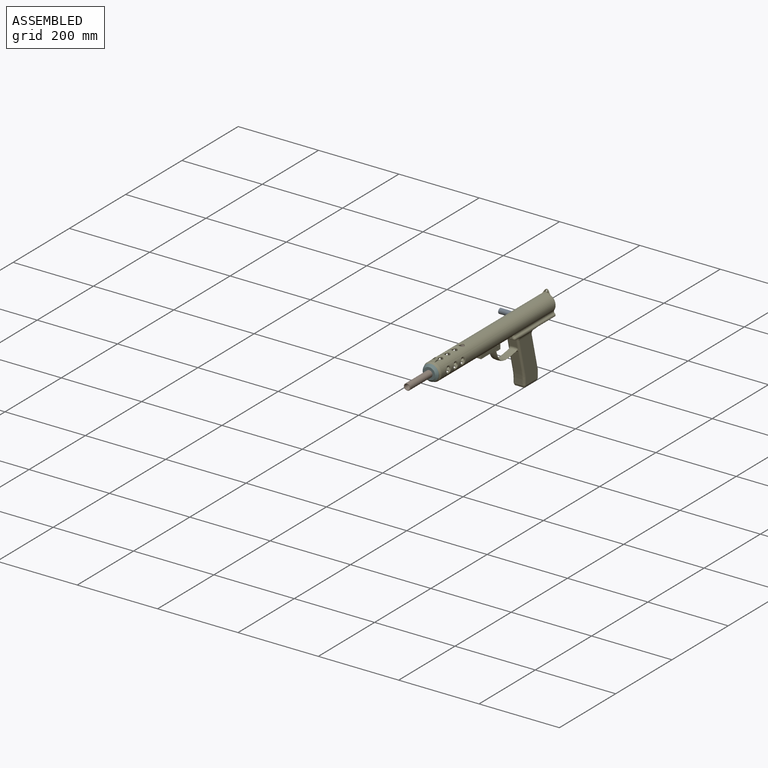
[diagram: assembled view]
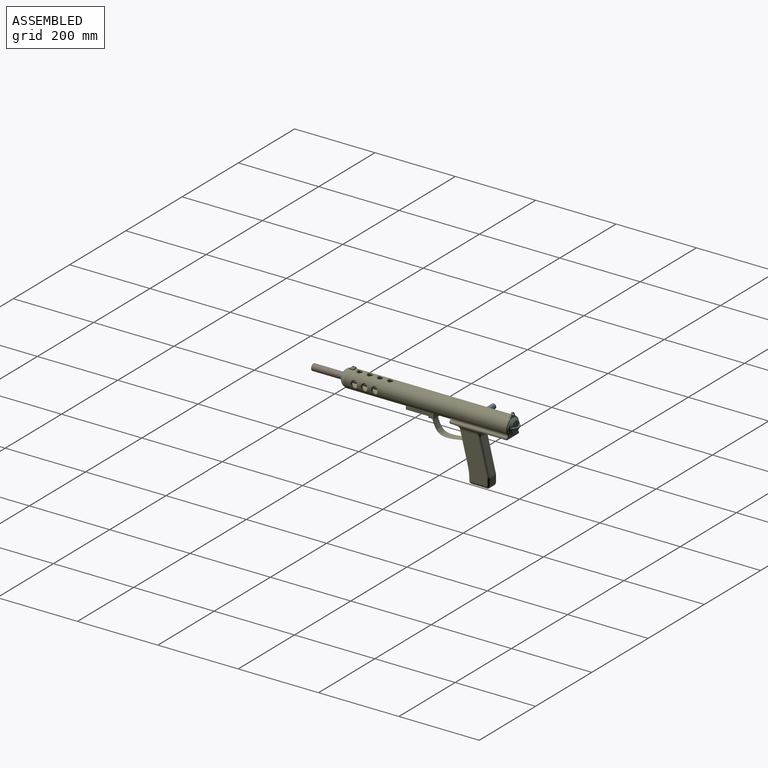
[diagram: assembled view, second angle]
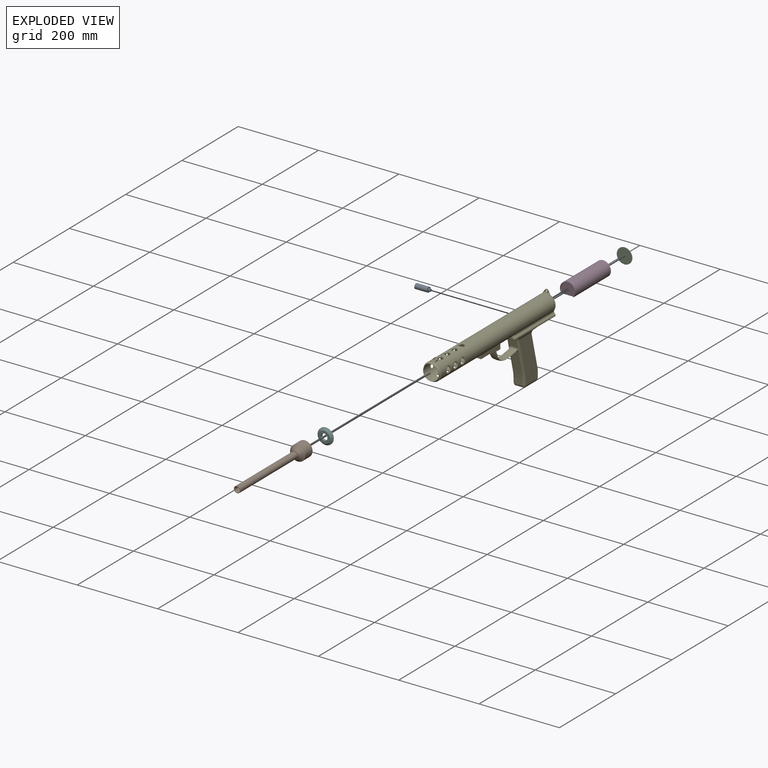
[diagram: exploded view]
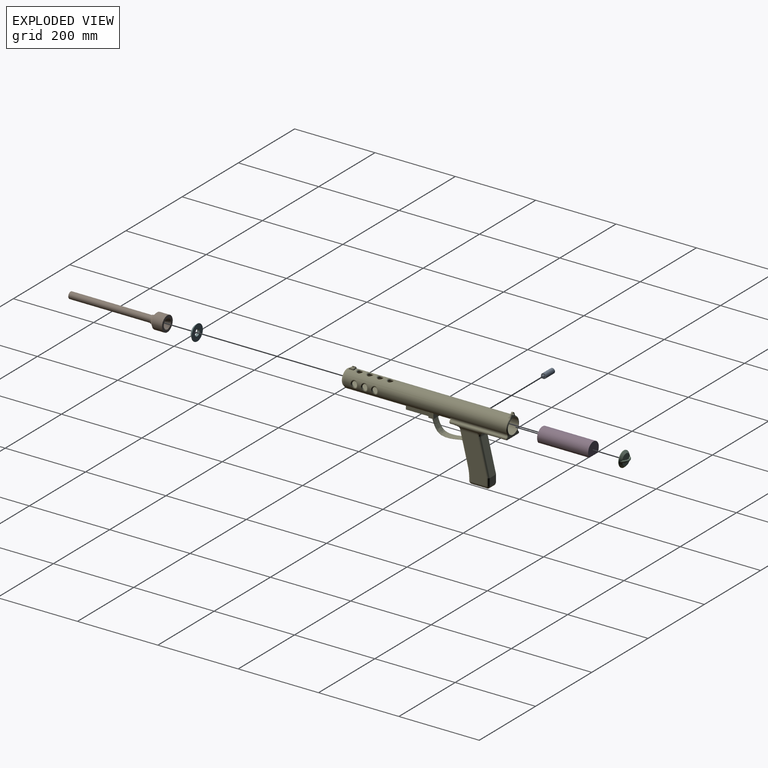
[diagram: exploded view, second angle]
ASSEMBLY  parts=6 mates=6
PART A: 7 faces, bbox 36.8x12.7x12.7 mm
  f0: cylinder r=6.35mm len=31.75mm, axis (-1,0,0), area 1266.8mm2, adj f1,f2
  f1: plane 12.7x12.7mm, normal (1,0,0), area 70.6mm2, adj f0,f5
  f2: plane 12.7x12.7mm, normal (-1,0,0), area 95mm2, adj f0,f3
  f3: cylinder r=3.17mm len=6.35mm, axis (1,0,0), area 101.3mm2, adj f2,f4
  f4: plane 6.35x6.35mm, normal (-1,0,0), area 31.7mm2, adj f3
  f5: cylinder r=4.23mm len=25.4mm, axis (1,0,0), area 674.6mm2, adj f1,f6
  f6: plane 8.45x8.45mm, normal (1,0,0), area 56.1mm2, adj f5
PART B: 11 faces, bbox 38.1x241.3x38.1 mm
  f0: cylinder r=19.05mm len=38.1mm, axis (0,1,0), area 3040.2mm2, adj f1,f4
  f1: plane 38.1x38.1mm, normal (0,1,0), area 633.4mm2, adj f0,f8
  f2: cylinder r=9.53mm len=19.05mm, axis (0,1,0), area 190mm2, adj f3,f4
  f3: plane 19.05x19.05mm, normal (0,-1,0), area 70.9mm2, adj f2,f5
  f4: cone r=9.53mm half-angle=45deg, axis (0,1,0), area 1209.2mm2, adj f0,f2
  f5: cylinder r=8.26mm len=202.28mm, axis (0,1,0), area 10491.8mm2, adj f3,f10
  f6: plane 14.67x14.67mm, normal (0,-1,0), area 3mm2, adj f9,f10
  f7: cylinder r=6.35mm len=227.68mm, axis (0,-1,0), area 9084mm2, adj f8,f9
  f8: cone r=6.35mm half-angle=26.6deg, axis (0,1,0), area 849.8mm2, adj f1,f7
  f9: torus R=7.27mm, axis (0,-1,0), area 60.7mm2, adj f6,f7
  f10: torus R=7.34mm, axis (0,-1,0), area 71.9mm2, adj f5,f6
PART C: 8 faces, bbox 38.8x18.8x38.8 mm
  f0: cylinder r=19.05mm len=38.1mm, axis (0,1,0), area 152mm2, adj f2,f7
  f1: plane 28.67x28.29mm, normal (0,-1,0), area 580.6mm2, adj f3,f4,f5,f6,f7
  f2: plane 38.1x38.1mm, normal (0,1,0), area 1140.1mm2, adj f0
  f3: bspline ~29.14x14.46mm, area 172.3mm2, adj f1,f5
  f4: bspline ~6.32x5.73mm, area 28.9mm2, adj f1,f6,f7
  f5: bspline ~30.91x15.35mm, area 243.8mm2, adj f1,f3,f6,f7
  f6: plane 5.07x2.31mm, normal (0.98,0.19,0), area 0.4mm2, adj f1,f4,f5
  f7: cone r=13.97mm half-angle=45deg, axis (0,1,0), area 711.4mm2, adj f0,f1,f4,f5
PART D: 11 faces, bbox 38.1x127.3x31.2 mm
  f0: cylinder r=19.05mm len=127mm, axis (0,1,0), area 10902.9mm2, adj f1,f4,f8,f10
  f1: plane 38.1x31.16mm, normal (0,-1,0), area 107.1mm2, adj f0,f2,f10
  f2: cylinder r=17.78mm len=35.56mm, axis (0,-1,0), area 209.6mm2, adj f1,f3,f10
  f3: plane 35.56x29.89mm, normal (0,-1,0), area 886.1mm2, adj f2,f5,f10
  f4: plane 38.1x31.16mm, normal (0,1,0), area 998.2mm2, adj f0,f10
  f5: cylinder r=1.27mm len=2.54mm, axis (0,1,0), area 2mm2, adj f3,f7
  f6: plane 1.02x1.02mm, normal (0,-1,0), area 0.8mm2, adj f7
  f7: cone r=0.51mm half-angle=16.7deg, axis (0,1,0), area 14.8mm2, adj f5,f6
  f8: cylinder r=3.17mm len=19.05mm, axis (1,0,0), area 377.4mm2, adj f0,f9
  f9: plane 6.35x6.35mm, normal (-1,0,0), area 31.7mm2, adj f8
  f10: plane 127x29.41mm, normal (0,0,-1), area 3668.6mm2, adj f0,f1,f2,f3,f4
PART E: 209 faces, bbox 49.8x414.4x184.6 mm
  f0: cylinder r=6.35mm len=10.12mm, axis (1,0,0), area 0mm2, adj f1,f208
  f1: bspline ~20.05x17.77mm, area 219mm2, adj f0,f2,f3,f208
  f2: cylinder r=6.35mm len=10.12mm, axis (1,0,0), area 0mm2, adj f1,f208
  f3: cylinder r=22.23mm len=405.13mm, axis (0,1,0), area 40278.7mm2, adj f1,f4,f7,f10,f13,f16,f19,f22
  f4: bspline ~20.06x17.77mm, area 218.7mm2, adj f3,f5,f6,f208
  f5: cylinder r=6.35mm len=10.12mm, axis (0,0,1), area 0mm2, adj f4,f208
  f6: cylinder r=6.35mm len=10.12mm, axis (0,0,1), area 6.2mm2, adj f4,f208
  f7: bspline ~20.06x17.77mm, area 218.7mm2, adj f3,f8,f9,f208
  f8: cylinder r=6.35mm len=10.12mm, axis (0,0,1), area 0mm2, adj f7,f208
  f9: cylinder r=6.35mm len=10.12mm, axis (0,0,1), area 6.2mm2, adj f7,f208
  f10: bspline ~20.06x17.77mm, area 218.7mm2, adj f3,f11,f12,f208
  f11: cylinder r=6.35mm len=10.12mm, axis (0,0,1), area 0mm2, adj f10,f208
  f12: cylinder r=6.35mm len=10.12mm, axis (0,0,1), area 6.2mm2, adj f10,f208
  f13: bspline ~20.06x17.77mm, area 218.7mm2, adj f3,f14,f15,f208
  f14: cylinder r=6.35mm len=10.12mm, axis (0,0,1), area 0mm2, adj f13,f208
  f15: cylinder r=6.35mm len=10.12mm, axis (0,0,1), area 6.2mm2, adj f13,f208
  f16: bspline ~20.05x17.77mm, area 219mm2, adj f3,f17,f18,f208
  f17: cylinder r=6.35mm len=10.12mm, axis (1,0,0), area 0mm2, adj f16,f208
  f18: cylinder r=6.35mm len=10.12mm, axis (1,0,0), area 0mm2, adj f16,f208
  f19: bspline ~20.05x17.77mm, area 219mm2, adj f3,f20,f21,f208
  f20: cylinder r=6.35mm len=10.12mm, axis (1,0,0), area 0mm2, adj f19,f208
  f21: cylinder r=6.35mm len=10.12mm, axis (1,0,0), area 0mm2, adj f19,f208
  f22: bspline ~20.05x17.77mm, area 219mm2, adj f3,f23,f24,f208
  f23: cylinder r=6.35mm len=10.12mm, axis (1,0,0), area 0mm2, adj f22,f208
  f24: cylinder r=6.35mm len=10.12mm, axis (1,0,0), area 0mm2, adj f22,f208
  f25: bspline ~20.05x17.77mm, area 219mm2, adj f3,f26,f27,f208
  f26: cylinder r=6.35mm len=10.12mm, axis (1,0,0), area 0mm2, adj f25,f208
  f27: cylinder r=6.35mm len=10.12mm, axis (1,0,0), area 0mm2, adj f25,f208
  f28: bspline ~20.05x17.77mm, area 219mm2, adj f3,f29,f30,f208
  f29: cylinder r=6.35mm len=10.12mm, axis (1,0,0), area 0mm2, adj f28,f208
  f30: cylinder r=6.35mm len=10.12mm, axis (1,0,0), area 0mm2, adj f28,f208
  f31: bspline ~20.05x17.77mm, area 219mm2, adj f3,f32,f33,f208
  f32: cylinder r=6.35mm len=10.12mm, axis (1,0,0), area 0mm2, adj f31,f208
  f33: cylinder r=6.35mm len=10.12mm, axis (1,0,0), area 0mm2, adj f31,f208
  f34: plane 25.4x9.47mm, normal (0,1,0), area 89.9mm2, adj f3,f35,f154,f155,f157,f208
  f35: cylinder r=17.99mm len=55.88mm, axis (0,-1,0), area 394mm2, adj f34,f36,f143,f144,f145,f146,f147,f148
  f36: plane 25.43x12.68mm, normal (0,-1,0), area 230.2mm2, adj f35,f37,f143,f145
  f37: plane 55.86x30.51mm, normal (0,0,-1), area 412.6mm2, adj f36,f38,f143,f144,f145,f175,f190,f191
  f38: plane 30.51x3.58mm, normal (0,-1,0), area 109.3mm2, adj f37,f39,f175,f191
  f39: plane 30.51x12.58mm, normal (0,0,-1), area 341.1mm2, adj f38,f40,f175,f191,f205
  f40: bspline ~74.93x37.79mm, area 3609.9mm2, adj f39,f41,f140,f141,f142
  f41: bspline ~11.49x6.83mm, area 41.4mm2, adj f40,f42,f140,f142
  f42: cylinder r=5.08mm len=94.44mm, axis (0,0.24,-0.97), area 648.4mm2, adj f41,f43,f135,f136,f137,f138,f139
  f43: bspline ~14.05x12.49mm, area 133.8mm2, adj f42,f44,f132,f133,f134,f135
  f44: bspline ~7.02x3.31mm, area 10.3mm2, adj f43,f45,f131,f132
  f45: plane 67.26x0.95mm, normal (1,0,0), area 55.5mm2, adj f44,f46,f128,f129,f130,f131
  f46: cylinder r=2.54mm len=40.33mm, axis (0,1,0), area 105.6mm2, adj f45,f47,f130,f131
  f47: cylinder r=12.7mm len=40.33mm, axis (0,1,0), area 528mm2, adj f46,f48,f135,f136
  f48: bspline ~15.49x14.97mm, area 102.2mm2, adj f47,f49,f127,f130
  f49: bspline ~15.78x14.08mm, area 155.6mm2, adj f48,f50,f125,f126,f127,f129
  f50: plane 60.53x39.37mm, normal (0,0,-1), area 2279.5mm2, adj f49,f51,f122,f123,f124,f126
  f51: bspline ~15.78x14.08mm, area 155.6mm2, adj f50,f52,f119,f120,f121,f126
  f52: bspline ~15.49x14.97mm, area 102.2mm2, adj f51,f53,f118,f121
  f53: cylinder r=12.7mm len=40.33mm, axis (0,1,0), area 528mm2, adj f52,f54,f116,f117
  f54: bspline ~17.81x13.21mm, area 84.6mm2, adj f53,f55,f85,f86
  f55: bspline ~14.05x12.49mm, area 133.8mm2, adj f54,f56,f84,f86,f133,f134
  f56: bspline ~4.26x2.75mm, area 6.4mm2, adj f55,f57,f83,f84
  f57: cylinder r=5.08mm len=138.43mm, axis (0,1,0), area 637mm2, adj f56,f58,f66,f67,f83,f120,f124,f196
  f58: sphere r=5.08mm, area 14.5mm2, adj f57,f59,f195
  f59: torus R=2.54mm, axis (0,0,1), area 26.2mm2, adj f58,f60,f83,f133
  f60: bspline ~2.74x2.73mm, area 0.6mm2, adj f59,f61,f133,f195
  f61: cylinder r=2.54mm len=34.13mm, axis (-1,0,0), area 136.2mm2, adj f60,f62,f133,f194,f204
  f62: bspline ~2.74x2.73mm, area 0.6mm2, adj f61,f63,f133,f203
  f63: torus R=2.54mm, axis (0,0,1), area 26.2mm2, adj f62,f64,f65,f133
  f64: sphere r=5.08mm, area 14.5mm2, adj f63,f128,f203
  f65: cylinder r=2.54mm len=7.19mm, axis (0,-1,0), area 29.1mm2, adj f63,f128,f132,f133
  f66: plane 67.26x0.95mm, normal (-1,0,0), area 55.5mm2, adj f57,f84,f85,f116,f118,f119
  f67: torus R=2.54mm, axis (0,-1,0), area 14.8mm2, adj f57,f68,f81,f82
  f68: plane 53.34x39.37mm, normal (0,1,0), area 350.3mm2, adj f67,f69,f71,f72,f73,f74,f75,f76
  f69: cylinder r=2.54mm len=5.08mm, axis (0,1,0), area 60.8mm2, adj f68,f70
  f70: plane 14.7x7.47mm, normal (0,-1,0), area 38.4mm2, adj f69,f71,f72,f73,f74,f80,f198,f199
  f71: cylinder r=5.08mm len=3.81mm, axis (0,-1,0), area 9.8mm2, adj f68,f70,f72,f80
  f72: cylinder r=3.81mm len=6.67mm, axis (0,1,0), area 30.9mm2, adj f68,f70,f71,f73
  f73: cylinder r=5.08mm len=3.81mm, axis (0,-1,0), area 9.8mm2, adj f68,f70,f72,f74
  f74: plane 6.52x5.51mm, normal (-1,0,0), area 2.8mm2, adj f68,f70,f73,f75,f198
  f75: cylinder r=2.54mm len=9.22mm, axis (0.53,0,0.85), area 27.5mm2, adj f68,f74,f197,f198
  f76: torus R=2.54mm, axis (0,-1,0), area 14.8mm2, adj f68,f77,f78,f128
  f77: sphere r=2.54mm, area 6.6mm2, adj f76,f122,f123
  f78: torus R=7.62mm, axis (0,-1,0), area 35.1mm2, adj f68,f76,f201,f202
  f79: cylinder r=2.54mm len=9.22mm, axis (0.53,0,-0.85), area 27.5mm2, adj f68,f80,f200,f201
  f80: plane 6.52x5.51mm, normal (1,0,0), area 2.8mm2, adj f68,f70,f71,f79,f200
  f81: torus R=7.62mm, axis (0,-1,0), area 35.1mm2, adj f67,f68,f196,f197
  f82: sphere r=2.54mm, area 10.3mm2, adj f67,f123,f124
  f83: cylinder r=2.54mm len=7.19mm, axis (0,1,0), area 29.1mm2, adj f56,f57,f59,f133
  f84: bspline ~8.4x3.37mm, area 10.3mm2, adj f55,f56,f66,f85
  f85: bspline ~11.55x2.8mm, area 30.4mm2, adj f54,f66,f84,f116
  f86: cylinder r=5.08mm len=94.44mm, axis (0,0.24,-0.97), area 648.4mm2, adj f54,f55,f87,f117,f138,f139,f141
  f87: bspline ~30.81x9.03mm, area 97.3mm2, adj f86,f88,f115
  f88: cylinder r=127mm len=30.8mm, axis (1,0,0), area 605.9mm2, adj f87,f89,f137,f138
  f89: plane 19.48x3.42mm, normal (0,-1,0), area 66.5mm2, adj f88,f90,f114,f115
  f90: plane 19.48x3.16mm, normal (0,-0.93,-0.37), area 66.2mm2, adj f89,f91,f112,f113
  f91: bspline ~6.35x5.24mm, area 24.2mm2, adj f90,f92,f111,f114
  f92: plane 40.33x3.16mm, normal (0.93,0,-0.37), area 137.1mm2, adj f91,f93,f110,f136
  f93: bspline ~6.35x5.24mm, area 24.2mm2, adj f92,f94,f108,f109
  f94: extruded ~19.05x5.24mm, area 153.7mm2, adj f93,f95,f107,f136
  f95: plane 19.48x18.89mm, normal (0,1,0), area 367.8mm2, adj f94,f96,f99,f108
  f96: cylinder r=1.32mm len=19.48mm, axis (-1,0,0), area 6.3mm2, adj f95,f97,f98,f107
  f97: plane 85.66x21.42mm, normal (0,0.97,0.24), area 1719.6mm2, adj f96,f121,f126,f127
  f98: bspline ~5.6x5.24mm, area 1.1mm2, adj f96,f99,f121
  f99: extruded ~19.05x5.24mm, area 153.7mm2, adj f95,f98,f100,f117
  f100: bspline ~6.35x5.24mm, area 24.2mm2, adj f99,f101,f106,f108
  f101: plane 40.33x3.16mm, normal (-0.93,0,-0.37), area 137.1mm2, adj f100,f102,f113,f117
  f102: cylinder r=5.08mm len=40.33mm, axis (0,1,0), area 239.4mm2, adj f101,f103,f104,f106
  f103: bspline ~4.72x4.72mm, area 14.3mm2, adj f102,f112,f113
  f104: plane 38.84x17.68mm, normal (0,0,-1), area 686.6mm2, adj f102,f105,f110,f112
  f105: cylinder r=5.08mm len=19.48mm, axis (1,0,0), area 112.3mm2, adj f104,f106,f108,f109
  f106: bspline ~4.72x4.72mm, area 14.3mm2, adj f100,f102,f105
  f107: bspline ~5.6x5.24mm, area 1.1mm2, adj f94,f96,f127
  f108: plane 19.48x3.16mm, normal (0,0.93,-0.37), area 66.2mm2, adj f93,f95,f100,f105
  f109: bspline ~4.72x4.72mm, area 14.3mm2, adj f93,f105,f110
  f110: cylinder r=5.08mm len=40.33mm, axis (0,1,0), area 239.4mm2, adj f92,f104,f109,f111
  f111: bspline ~4.72x4.72mm, area 14.3mm2, adj f91,f110,f112
  f112: cylinder r=5.08mm len=19.48mm, axis (1,0,0), area 112.3mm2, adj f90,f103,f104,f111
  f113: bspline ~6.35x5.24mm, area 24.2mm2, adj f90,f101,f103,f115
  f114: extruded ~19.05x5.24mm, area 74.9mm2, adj f89,f91,f136,f137
  f115: extruded ~19.05x5.24mm, area 74.9mm2, adj f87,f89,f113,f117
  f116: cylinder r=2.54mm len=40.33mm, axis (0,1,0), area 105.6mm2, adj f53,f66,f85,f118
  f117: plane 109.11x62.84mm, normal (-1,0,0), area 4399.9mm2, adj f53,f86,f99,f101,f115,f121
  f118: bspline ~13.87x2.77mm, area 32mm2, adj f52,f66,f116,f119
  f119: bspline ~7.02x3.31mm, area 10.3mm2, adj f51,f66,f118,f120
  f120: bspline ~5.23x2.8mm, area 6.4mm2, adj f51,f57,f119,f124
  f121: cylinder r=5.08mm len=92.36mm, axis (0,-0.24,0.97), area 716.6mm2, adj f51,f52,f97,f98,f117
  f122: cylinder r=2.54mm len=60.53mm, axis (0,-1,0), area 245.3mm2, adj f50,f77,f125,f128
  f123: cylinder r=2.54mm len=39.37mm, axis (-1,0,0), area 157.1mm2, adj f50,f68,f77,f82
  f124: cylinder r=2.54mm len=60.53mm, axis (0,1,0), area 245.3mm2, adj f50,f57,f82,f120
  f125: bspline ~4.26x2.75mm, area 6.4mm2, adj f49,f122,f128,f129
  f126: cylinder r=12.7mm len=19.48mm, axis (1,0,0), area 449.1mm2, adj f49,f50,f51,f97
  f127: cylinder r=5.08mm len=92.36mm, axis (0,-0.24,0.97), area 716.6mm2, adj f48,f49,f97,f107,f136
  f128: cylinder r=5.08mm len=138.43mm, axis (0,-1,0), area 637mm2, adj f45,f64,f65,f76,f122,f125,f132,f202
  f129: bspline ~8.4x3.37mm, area 10.3mm2, adj f45,f49,f125,f130
  f130: bspline ~14.01x2.79mm, area 32mm2, adj f45,f46,f48,f129
  f131: bspline ~13.45x2.8mm, area 30.4mm2, adj f44,f45,f46,f135
  f132: bspline ~5.23x2.8mm, area 6.4mm2, adj f43,f44,f65,f128
  f133: plane 39.37x9.73mm, normal (0,0,-1), area 276.9mm2, adj f43,f55,f59,f60,f61,f62,f63,f65
  f134: cylinder r=12.7mm len=19.48mm, axis (-1,0,0), area 327.9mm2, adj f43,f55,f133,f139
  f135: bspline ~16.44x13.14mm, area 84.6mm2, adj f42,f43,f47,f131
  f136: plane 109.11x62.84mm, normal (1,0,0), area 4399.9mm2, adj f42,f47,f92,f94,f114,f127
  f137: bspline ~30.81x9.03mm, area 97.3mm2, adj f42,f88,f114
  f138: plane 47.05x19.49mm, normal (0,-0.97,-0.24), area 931.5mm2, adj f42,f86,f88,f140
  f139: plane 19.48x18.96mm, normal (0,-0.97,-0.24), area 367.9mm2, adj f42,f86,f134,f142
  f140: bspline ~20.3x6.09mm, area 137.9mm2, adj f40,f41,f138,f141
  f141: bspline ~11.26x6.74mm, area 41.4mm2, adj f40,f86,f140,f142
  f142: bspline ~20.44x7.04mm, area 147.5mm2, adj f40,f41,f139,f141
  f143: plane 50.8x12.68mm, normal (-1,0,0), area 644.2mm2, adj f35,f36,f37,f144
  f144: plane 25.43x12.68mm, normal (0,1,0), area 230.2mm2, adj f35,f37,f143,f145
  f145: plane 50.8x12.68mm, normal (1,0,0), area 644.2mm2, adj f35,f36,f37,f144
  f146: plane 7.88x6.88mm, normal (0,1,0), area 9.5mm2, adj f35,f147,f151,f208
  f147: plane 2.54x1.86mm, normal (-1,0,0), area 4.7mm2, adj f35,f146,f156,f208
  f148: plane 30.51x9.53mm, normal (0,-1,0), area 38.2mm2, adj f35,f149,f154,f208
  f149: plane 55.88x1.91mm, normal (1,0,0), area 106.5mm2, adj f35,f148,f150,f208
  f150: plane 7.88x6.88mm, normal (0,1,0), area 9.7mm2, adj f35,f149,f151,f208
  f151: plane 19.38x12.58mm, normal (0,0,1), area 243.7mm2, adj f35,f146,f150,f152,f153,f208
  f152: plane 19.38x2.65mm, normal (0,1,0), area 34.7mm2, adj f151,f208
  f153: plane 14.76x1.58mm, normal (0,-1,0), area 15.7mm2, adj f35,f151
  f154: plane 2.54x1.86mm, normal (-1,0,0), area 4.7mm2, adj f34,f35,f148,f208
  f155: plane 50.8x4.04mm, normal (0,0,-1), area 205.2mm2, adj f3,f34,f156,f208
  f156: plane 25.4x9.47mm, normal (0,-1,0), area 89.9mm2, adj f3,f35,f147,f155,f157,f208
  f157: plane 50.8x5.49mm, normal (0,0,1), area 278.7mm2, adj f3,f34,f35,f156
  f158: plane 5.08x0.59mm, normal (0,-1,0), area 1mm2, adj f3,f159,f170
  f159: plane 10.16x5.08mm, normal (0,-0.71,0.71), area 45.6mm2, adj f158,f160,f163,f164,f165,f166,f167,f168
  f160: plane 10.16x5.08mm, normal (0,0,1), area 46.5mm2, adj f159,f161,f163,f166,f169
  f161: cylinder r=1.27mm len=2.54mm, axis (0,0,-1), area 10.1mm2, adj f160,f162
  f162: bspline ~2.54x2.54mm, area 7.8mm2, adj f161
  f163: plane 10.16x2.54mm, normal (-1,0,0), area 22.6mm2, adj f159,f160,f164,f169
  f164: plane 10.16x2.54mm, normal (0.71,0,0.71), area 31.9mm2, adj f159,f163,f168,f169
  f165: plane 10.16x2.54mm, normal (-0.71,0,0.71), area 31.9mm2, adj f159,f166,f169,f170
  f166: plane 10.16x2.54mm, normal (1,0,0), area 22.6mm2, adj f159,f160,f165,f169
  f167: plane 5.08x0.59mm, normal (0,-1,0), area 1mm2, adj f3,f159,f168
  f168: plane 12.7x3.13mm, normal (1,0,0), area 36.5mm2, adj f3,f159,f164,f167,f169
  f169: plane 10.16x5.67mm, normal (0,1,0), area 34.2mm2, adj f3,f160,f163,f164,f165,f166,f168,f170
  f170: plane 12.7x3.13mm, normal (-1,0,0), area 36.5mm2, adj f3,f158,f159,f165,f169
  f171: cylinder r=6.35mm len=12.7mm, axis (1,0,0), area 66.6mm2, adj f3,f172,f174,f208
  f172: plane 114.3x3.34mm, normal (0,0,1), area 381.5mm2, adj f3,f171,f173,f208
  f173: cylinder r=6.35mm len=12.7mm, axis (1,0,0), area 66.6mm2, adj f3,f172,f174,f208
  f174: plane 114.3x3.34mm, normal (0,0,-1), area 381.5mm2, adj f3,f171,f173,f208
  f175: plane 68.45x12.81mm, normal (1,0,0), area 673.5mm2, adj f3,f37,f38,f39,f190,f205,f206,f207
  f176: cone r=19.69mm half-angle=26.6deg, axis (0,1,0), area 747.8mm2, adj f3,f177
  f177: plane 39.37x39.37mm, normal (0,-1,0), area 77.3mm2, adj f176,f208
  f178: bspline ~20.06x17.76mm, area 218.8mm2, adj f3,f179,f180,f208
  f179: cylinder r=6.35mm len=10.12mm, axis (0,0,1), area 4mm2, adj f178,f208
  f180: cylinder r=6.35mm len=10.12mm, axis (0,0,1), area 4mm2, adj f178,f208
  f181: bspline ~20.06x17.76mm, area 218.8mm2, adj f3,f182,f183,f208
  f182: cylinder r=6.35mm len=10.12mm, axis (0,0,1), area 4mm2, adj f181,f208
  f183: cylinder r=6.35mm len=10.12mm, axis (0,0,1), area 4mm2, adj f181,f208
  f184: bspline ~20.06x17.76mm, area 218.8mm2, adj f3,f185,f186,f208
  f185: cylinder r=6.35mm len=10.12mm, axis (0,0,1), area 4mm2, adj f184,f208
  f186: cylinder r=6.35mm len=10.12mm, axis (0,0,1), area 4mm2, adj f184,f208
  f187: bspline ~20.06x17.76mm, area 218.8mm2, adj f3,f188,f189,f208
  f188: cylinder r=6.35mm len=10.12mm, axis (0,0,1), area 4mm2, adj f187,f208
  f189: cylinder r=6.35mm len=10.12mm, axis (0,0,1), area 4mm2, adj f187,f208
  f190: plane 30.51x9.26mm, normal (0,-1,0), area 154.7mm2, adj f3,f37,f175,f191
  f191: plane 68.45x12.84mm, normal (-1,0,0), area 675.3mm2, adj f3,f37,f38,f39,f190,f192,f193,f205
  f192: plane 0.28x0.26mm, normal (0,1,0), area 0mm2, adj f3,f191,f193
  f193: plane 12.57x0.28mm, normal (0,0,1), area 3.5mm2, adj f3,f191,f192,f205
  f194: plane 17.06x4.72mm, normal (0,-1,0), area 26.9mm2, adj f3,f61,f195
  f195: torus R=10.16mm, axis (0,1,0), area 47.8mm2, adj f3,f58,f60,f194,f196
  f196: cylinder r=5.08mm len=138.43mm, axis (0,1,0), area 1030.9mm2, adj f3,f57,f81,f195
  f197: torus R=19.69mm, axis (0,-1,0), area 143.5mm2, adj f3,f68,f75,f81
  f198: plane 7.49x4.81mm, normal (-0.85,0,0.53), area 16.4mm2, adj f3,f70,f74,f75,f199
  f199: cone r=22.23mm half-angle=45deg, axis (0,1,0), area 63mm2, adj f3,f70,f198,f200
  f200: plane 7.49x4.81mm, normal (0.85,0,0.53), area 16.4mm2, adj f3,f70,f79,f80,f199
  f201: torus R=19.69mm, axis (0,-1,0), area 143.5mm2, adj f3,f68,f78,f79
  f202: cylinder r=5.08mm len=138.43mm, axis (0,-1,0), area 1030.9mm2, adj f3,f78,f128,f203
  f203: torus R=10.16mm, axis (0,1,0), area 47.8mm2, adj f3,f62,f64,f202,f204
  f204: plane 17.06x4.72mm, normal (0,-1,0), area 26.9mm2, adj f3,f61,f203
  f205: plane 30.51x12.58mm, normal (0,1,0), area 264mm2, adj f3,f39,f175,f191,f193,f206
  f206: plane 12.57x0.24mm, normal (0,0,1), area 3mm2, adj f3,f175,f205,f207
  f207: plane 0.24x0.22mm, normal (0,1,0), area 0mm2, adj f3,f175,f206
  f208: cylinder r=19.05mm len=412.75mm, axis (0,-1,0), area 42358.6mm2, adj f0,f1,f2,f4,f5,f6,f7,f8
PART F: 5 faces, bbox 39.4x6.4x39.4 mm
  f0: cylinder r=19.69mm len=39.37mm, axis (0,1,0), area 157.1mm2, adj f3,f4
  f1: cylinder r=8.26mm len=16.51mm, axis (0,1,0), area 329.4mm2, adj f2,f3
  f2: plane 29.21x29.21mm, normal (0,-1,0), area 456mm2, adj f1,f4
  f3: plane 39.37x39.37mm, normal (0,1,0), area 1003.3mm2, adj f0,f1
  f4: cone r=14.61mm half-angle=45deg, axis (0,1,0), area 773.9mm2, adj f0,f2
PLACE A rot(axis=(0,1,0),180deg) t=(-24.18,96.75,108.74)mm
PLACE B t=(0.06,-72.03,108.74)mm
PLACE C rot(axis=(1,0,0),180deg) t=(0.07,184.51,108.74)mm
PLACE D t=(0.07,96.75,108.74)mm
PLACE E t=(0.07,6.71,108.74)mm
PLACE F t=(0.07,6.71,108.74)mm
MATE cylindrical A.f3 <-> D.f8  axis (-1,0,0) through (-21.64,96.75,108.74)mm
MATE fastened C.f0 <-> E.f208  axis (0,-1,0) through (0.07,184.51,108.74)mm
MATE planar A.f3 <-> D.f8  axis (-1,0,0) through (-19.1,96.75,108.74)mm
MATE fastened F.f1 <-> E.f208  axis (0,1,0) through (0.07,-228.24,108.74)mm
MATE fastened B.f0 <-> E.f35  axis (0,1,0) through (0.06,-72.03,108.74)mm
MATE slider D.f0 <-> E.f208  axis (0,1,0) through (0.07,45.95,108.74)mm
